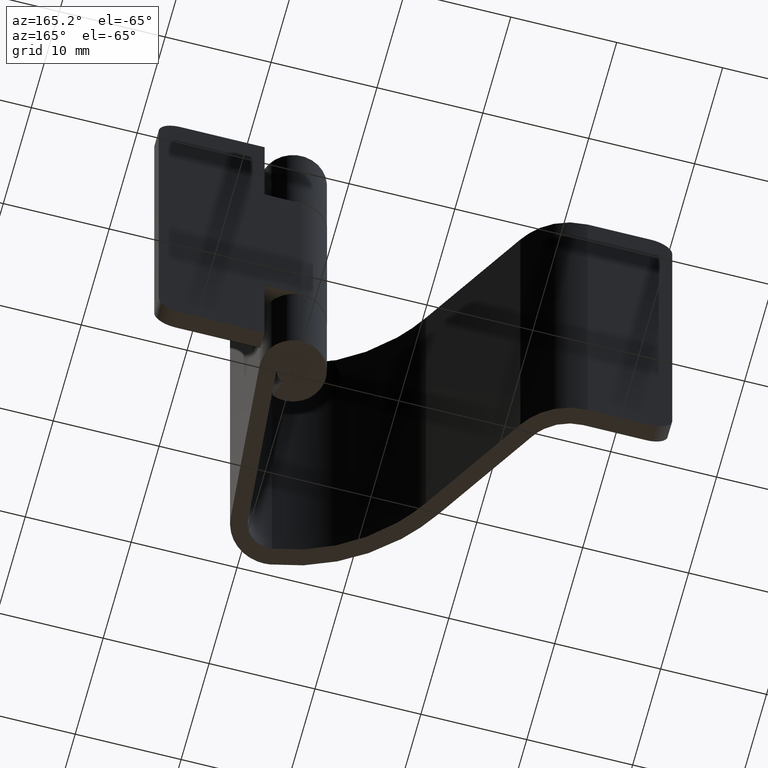
[diagram: clean part render]
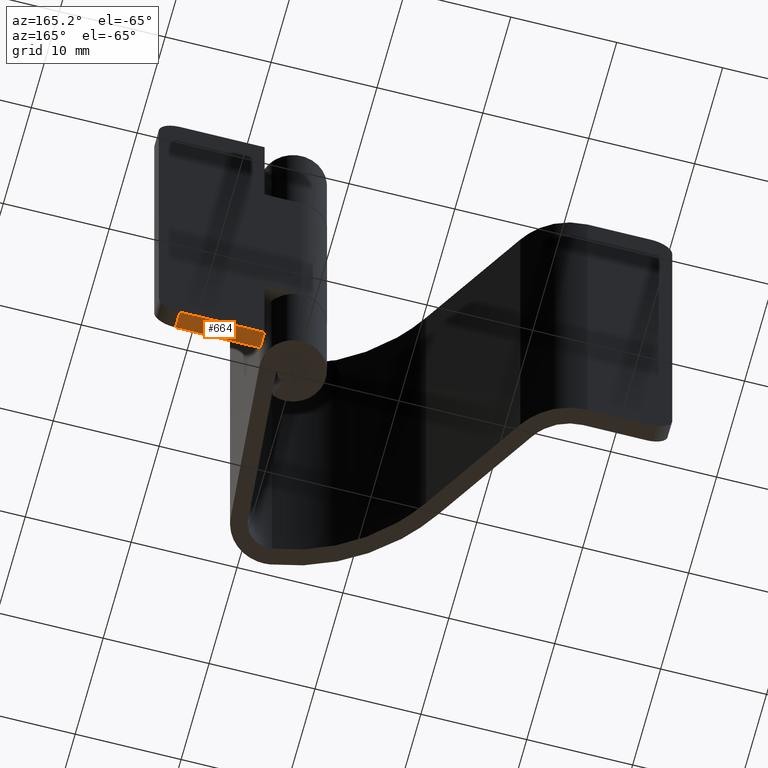
[diagram: same view with one face highlighted and labeled with its STEP entity id]
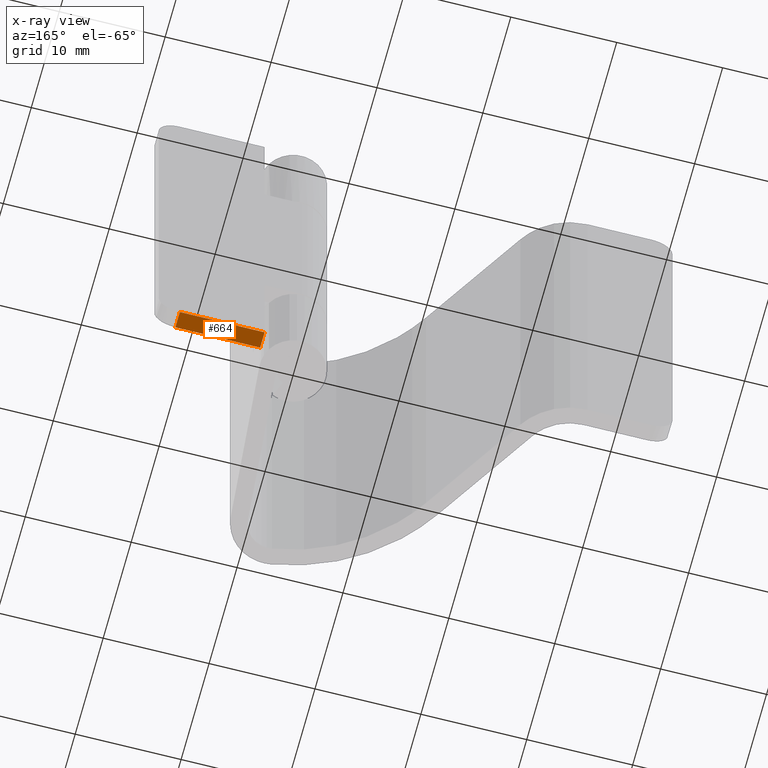
[diagram: x-ray of the same camera — body ghosted, the highlighted face saturated]
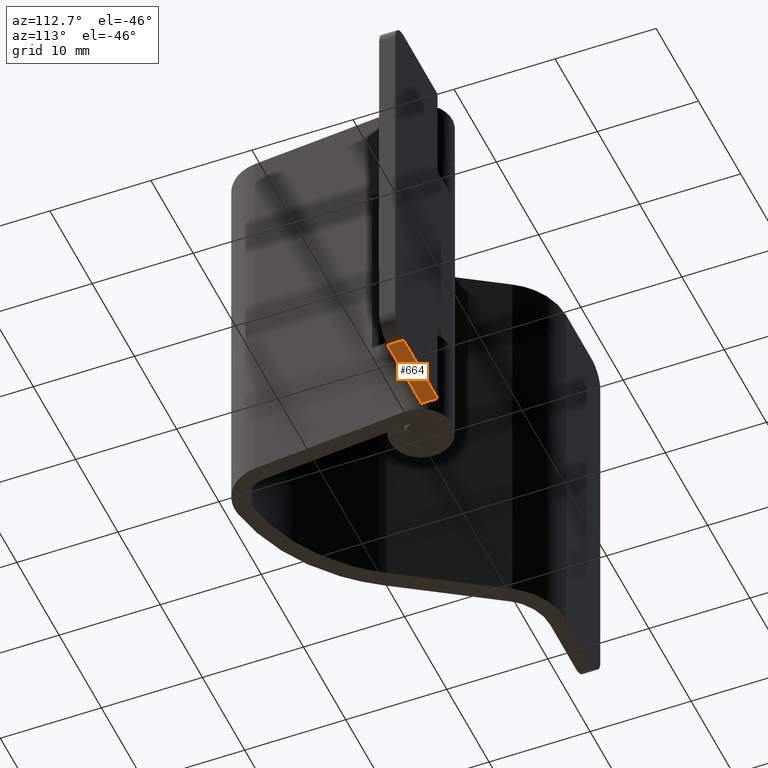
[diagram: same view with one face highlighted and labeled with its STEP entity id]
A machine part, auxiliary view. The second image highlights one B-rep face of the part: STEP entity #664.
The next image is the same camera in x-ray: the body ghosted, the highlighted face saturated — about 0% of this face is hidden behind the body in this view.
A second angle (auxiliary view) of the same face is appended — the face is thin or edge-on in the first view.
In plain terms, the highlighted face is a freeform B-spline surface patch.
Its self-contained STEP definition (entity closure, byte-faithful):
#402=CARTESIAN_POINT('',(3.499999999999915,1.500000000000000,0.0));
#403=VERTEX_POINT('',#402);
#404=CARTESIAN_POINT('',(3.499999999999915,3.099998000000000,0.0));
#405=VERTEX_POINT('',#404);
#406=CARTESIAN_POINT('',(3.499999999999915,1.500000000000000,0.0));
#407=CARTESIAN_POINT('',(3.499999999999915,3.099998000000000,0.0));
#408=QUASI_UNIFORM_CURVE('',1,(#406,#407),.UNSPECIFIED.,.F.,.U.);
#409=EDGE_CURVE('',#403,#405,#408,.T.);
#580=CARTESIAN_POINT('',(11.500000000000000,3.099998000000000,0.0));
#581=VERTEX_POINT('',#580);
#602=CARTESIAN_POINT('',(11.500000000000000,1.500000000000000,0.0));
#603=VERTEX_POINT('',#602);
#617=CARTESIAN_POINT('',(11.500000000000000,3.099998000000000,0.0));
#618=CARTESIAN_POINT('',(11.500000000000000,1.500000000000000,0.0));
#619=QUASI_UNIFORM_CURVE('',1,(#617,#618),.UNSPECIFIED.,.F.,.U.);
#620=EDGE_CURVE('',#581,#603,#619,.T.);
#645=CARTESIAN_POINT('',(3.100400015505463,1.420080103001106,0.0));
#646=CARTESIAN_POINT('',(11.899600199071180,1.420080103001106,0.0));
#647=CARTESIAN_POINT('',(3.100400015505463,3.179917939914184,0.0));
#648=CARTESIAN_POINT('',(11.899600199071180,3.179917939914184,0.0));
#649=B_SPLINE_SURFACE_WITH_KNOTS('',1,1,((#645,#647),(#646,#648)),.UNSPECIFIED.,.F.,.F.,.U.,(2,2),(2,2),(0.0,8.799200183565715),(0.041708334948495,0.958291687403247),.UNSPECIFIED.);
#650=CARTESIAN_POINT('',(11.500000000000000,1.500000000000000,0.0));
#651=CARTESIAN_POINT('',(3.499999999999915,1.500000000000000,0.0));
#652=QUASI_UNIFORM_CURVE('',1,(#650,#651),.UNSPECIFIED.,.F.,.U.);
#653=EDGE_CURVE('',#603,#403,#652,.T.);
#654=ORIENTED_EDGE('',*,*,#653,.T.);
#655=ORIENTED_EDGE('',*,*,#409,.T.);
#656=CARTESIAN_POINT('',(3.499999999999915,3.099998000000000,0.0));
#657=CARTESIAN_POINT('',(11.500000000000000,3.099998000000000,0.0));
#658=QUASI_UNIFORM_CURVE('',1,(#656,#657),.UNSPECIFIED.,.F.,.U.);
#659=EDGE_CURVE('',#405,#581,#658,.T.);
#660=ORIENTED_EDGE('',*,*,#659,.T.);
#661=ORIENTED_EDGE('',*,*,#620,.T.);
#662=EDGE_LOOP('',(#654,#655,#660,#661));
#663=FACE_OUTER_BOUND('',#662,.T.);
#664=ADVANCED_FACE('',(#663),#649,.F.);